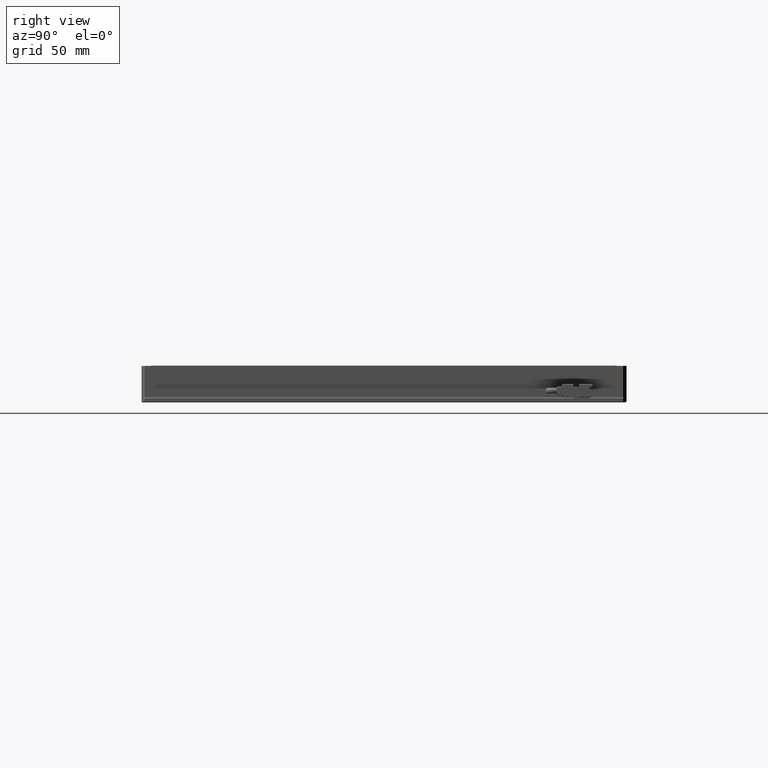
[diagram: clean part render]
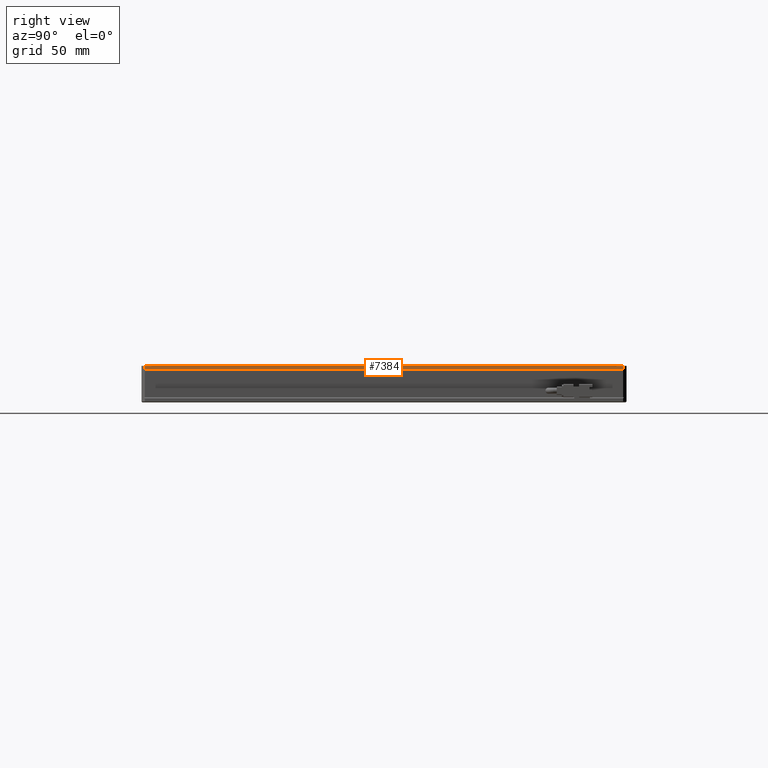
[diagram: same view with one face highlighted and labeled with its STEP entity id]
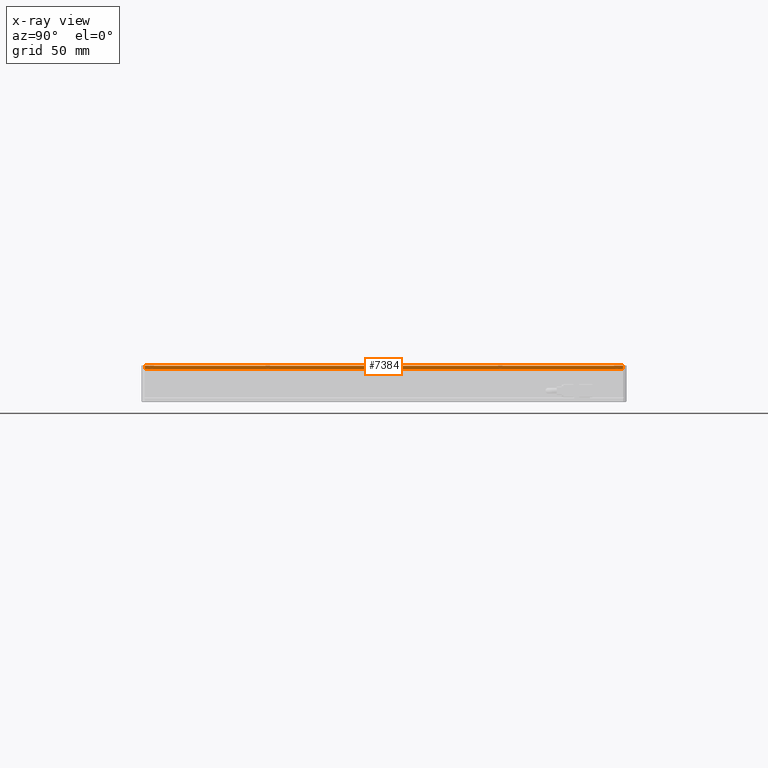
[diagram: x-ray of the same camera — body ghosted, the highlighted face saturated]
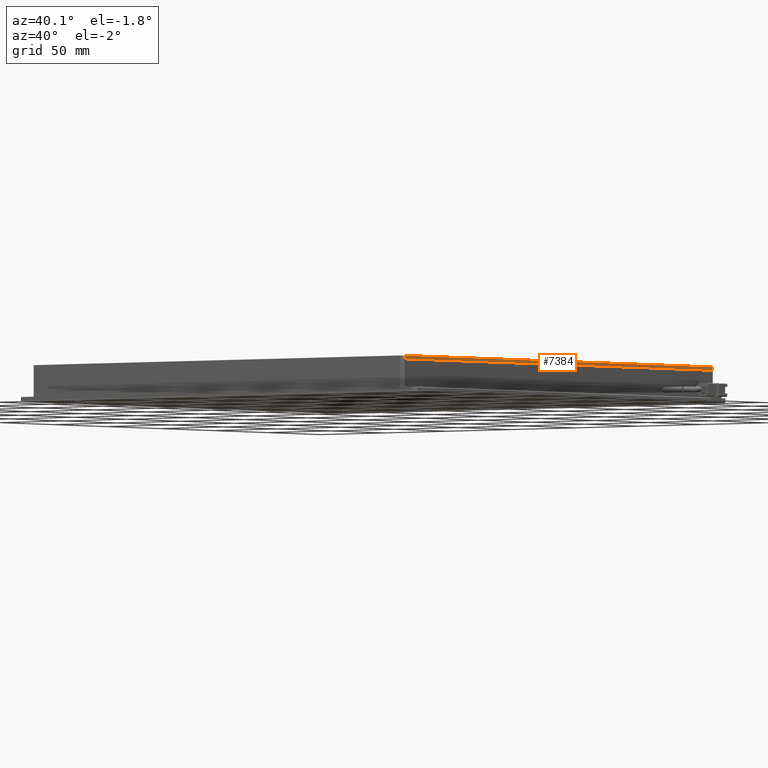
[diagram: same view with one face highlighted and labeled with its STEP entity id]
A machine part, right view. The second image highlights one B-rep face of the part: STEP entity #7384.
The next image is the same camera in x-ray: the body ghosted, the highlighted face saturated — about 0% of this face is hidden behind the body in this view.
A second angle (auxiliary view) of the same face is appended — the face is thin or edge-on in the first view.
In plain terms, the highlighted planar face has unit normal (-1, 0, 0).
Its self-contained STEP definition (entity closure, byte-faithful):
#57 = AXIS2_PLACEMENT_3D ( 'NONE', #22497, #9667, #24670 ) ;
#81 = DIRECTION ( 'NONE',  ( 0.0000000000000000000, 1.000000000000000000, 0.0000000000000000000 ) ) ;
#365 = LINE ( 'NONE', #17557, #21777 ) ;
#406 = LINE ( 'NONE', #4470, #17477 ) ;
#1403 = LINE ( 'NONE', #3405, #12763 ) ;
#1659 = EDGE_CURVE ( 'NONE', #21177, #6080, #1403, .T. ) ;
#1900 = DIRECTION ( 'NONE',  ( 0.0000000000000000000, 0.0000000000000000000, 1.000000000000000000 ) ) ;
#2590 = CARTESIAN_POINT ( 'NONE',  ( 178.9193228736581600, 157.2698045692266400, 8.499999999971805700 ) ) ;
#3405 = CARTESIAN_POINT ( 'NONE',  ( 178.9193228736581900, 157.2698045692265800, 10.49999999997180600 ) ) ;
#3570 = CARTESIAN_POINT ( 'NONE',  ( 178.9193228736581300, 157.2698045692266100, 10.49999999997180600 ) ) ;
#3826 = ORIENTED_EDGE ( 'NONE', *, *, #1659, .T. ) ;
#4470 = CARTESIAN_POINT ( 'NONE',  ( 178.9193228736580700, -132.7301954307733900, 8.499999999971805700 ) ) ;
#4499 = VECTOR ( 'NONE', #12029, 1000.000000000000000 ) ;
#6080 = VERTEX_POINT ( 'NONE', #3570 ) ;
#6581 = VERTEX_POINT ( 'NONE', #22282 ) ;
#6689 = DIRECTION ( 'NONE',  ( 0.0000000000000000000, 0.0000000000000000000, 1.000000000000000000 ) ) ;
#7122 = ORIENTED_EDGE ( 'NONE', *, *, #8850, .F. ) ;
#7384 = ADVANCED_FACE ( 'NONE', ( #20282 ), #9571, .F. ) ;
#8832 = ORIENTED_EDGE ( 'NONE', *, *, #21116, .T. ) ;
#8850 = EDGE_CURVE ( 'NONE', #22712, #6581, #365, .T. ) ;
#9466 = EDGE_LOOP ( 'NONE', ( #9947, #7122, #8832, #3826 ) ) ;
#9571 = PLANE ( 'NONE',  #57 ) ;
#9667 = DIRECTION ( 'NONE',  ( -1.000000000000000000, 0.0000000000000000000, 0.0000000000000000000 ) ) ;
#9867 = CARTESIAN_POINT ( 'NONE',  ( 178.9193228736581300, 159.2698045692265800, 10.49999999997180600 ) ) ;
#9947 = ORIENTED_EDGE ( 'NONE', *, *, #16259, .F. ) ;
#10843 = LINE ( 'NONE', #9867, #4499 ) ;
#12029 = DIRECTION ( 'NONE',  ( 0.0000000000000000000, 1.000000000000000000, 0.0000000000000000000 ) ) ;
#12763 = VECTOR ( 'NONE', #1900, 1000.000000000000000 ) ;
#16259 = EDGE_CURVE ( 'NONE', #6581, #6080, #10843, .T. ) ;
#17477 = VECTOR ( 'NONE', #81, 1000.000000000000000 ) ;
#17557 = CARTESIAN_POINT ( 'NONE',  ( 178.9193228736581300, -130.7301954307734200, 10.49999999997180600 ) ) ;
#20282 = FACE_OUTER_BOUND ( 'NONE', #9466, .T. ) ;
#21116 = EDGE_CURVE ( 'NONE', #22712, #21177, #406, .T. ) ;
#21136 = CARTESIAN_POINT ( 'NONE',  ( 178.9193228736581000, -130.7301954307734200, 8.499999999971805700 ) ) ;
#21177 = VERTEX_POINT ( 'NONE', #2590 ) ;
#21777 = VECTOR ( 'NONE', #6689, 1000.000000000000000 ) ;
#22282 = CARTESIAN_POINT ( 'NONE',  ( 178.9193228736581000, -130.7301954307734200, 10.49999999997180600 ) ) ;
#22497 = CARTESIAN_POINT ( 'NONE',  ( 178.9193228736581300, 159.2698045692265800, 10.49999999997180600 ) ) ;
#22712 = VERTEX_POINT ( 'NONE', #21136 ) ;
#24670 = DIRECTION ( 'NONE',  ( 0.0000000000000000000, 0.0000000000000000000, 1.000000000000000000 ) ) ;